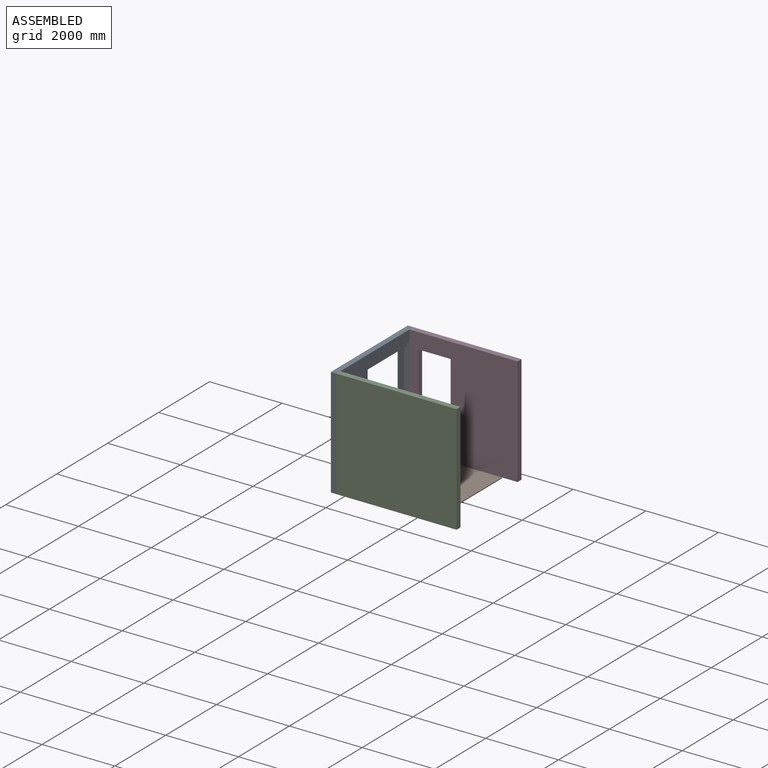
[diagram: assembled view]
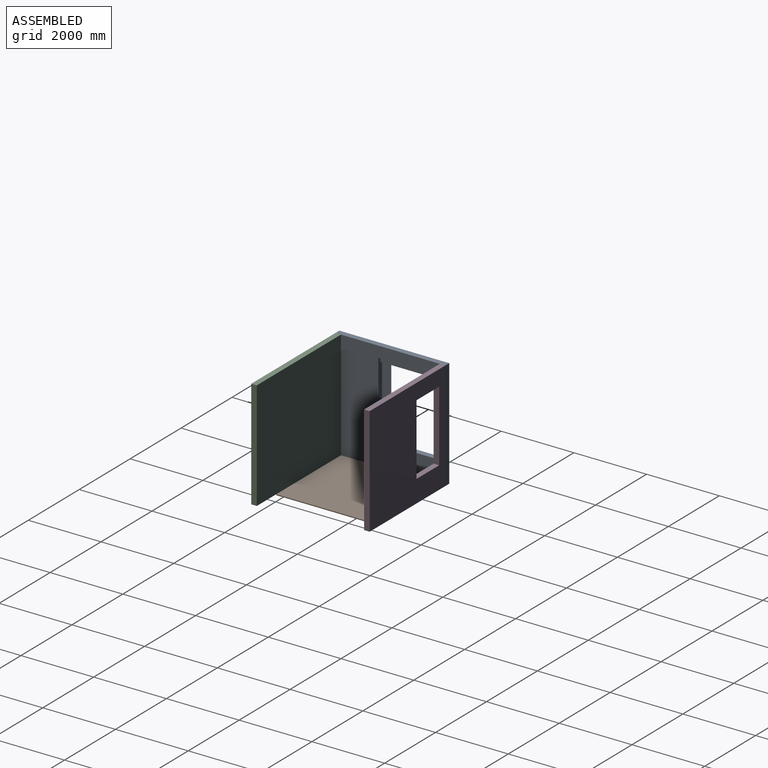
[diagram: assembled view, second angle]
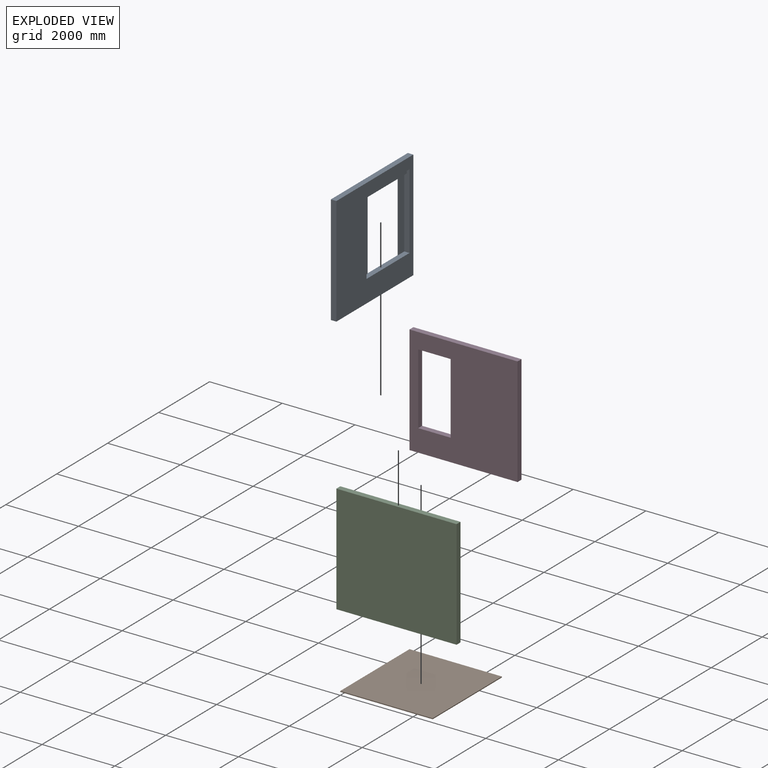
[diagram: exploded view]
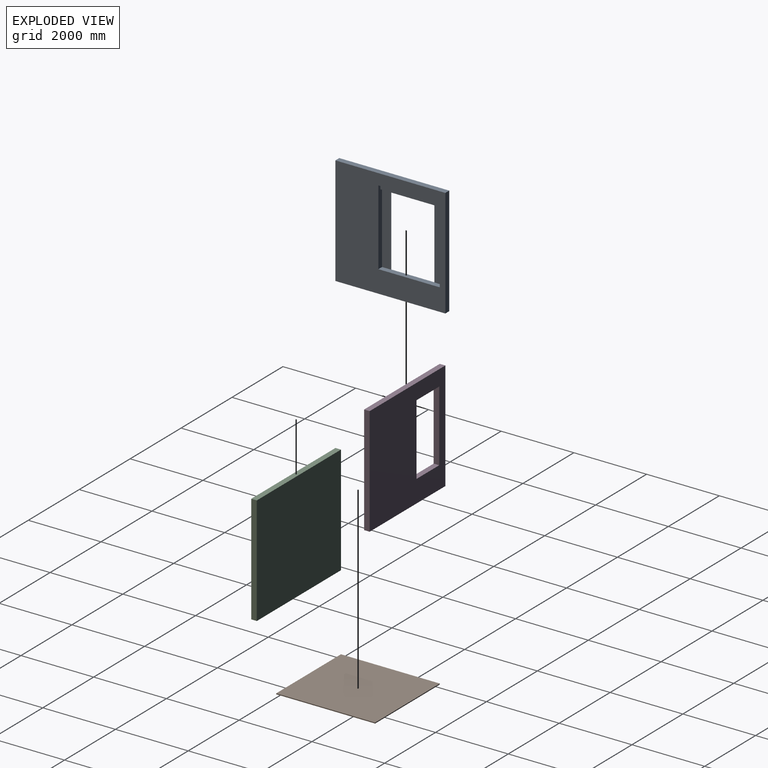
[diagram: exploded view, second angle]
ASSEMBLY  parts=4 mates=9
PART A: 16 faces, bbox 3022.6x152.4x2997.2 mm
  f0: plane 1689.1x76.2mm, normal (0,0,-1), area 123991.7mm2, adj f2,f8,f9,f10,f11,f12,f13,f15
  f1: plane 3022.6x2997.2mm, normal (0,-1,0), area 5541279.2mm2, adj f3,f4,f5,f6,f7,f10,f12,f14
  f2: plane 3022.6x2997.2mm, normal (0,1,0), area 6724502.7mm2, adj f0,f3,f4,f5,f6,f7,f8,f9
  f3: plane 2997.2x152.4mm, normal (-1,0,0), area 456773.3mm2, adj f1,f2,f4,f6
  f4: plane 3022.6x152.4mm, normal (0,0,-1), area 460644.2mm2, adj f1,f2,f3,f5
  f5: plane 2997.2x152.4mm, normal (1,0,0), area 456773.3mm2, adj f1,f2,f4,f6
  f6: plane 3022.6x152.4mm, normal (0,0,1), area 460644.2mm2, adj f1,f2,f3,f5
  f7: plane 1689.1x152.4mm, normal (0,0,1), area 252701.1mm2, adj f1,f2,f8,f9,f10,f11,f12,f13
  f8: plane 1955.8x9.53mm, normal (-1,0,0), area 18629mm2, adj f0,f2,f7,f11
  f9: plane 1955.8x9.53mm, normal (1,0,0), area 18629mm2, adj f0,f2,f7,f13
  f10: plane 2082.8x142.88mm, normal (-1,0,0), area 289112.3mm2, adj f0,f1,f7,f11,f14,f15
  f11: plane 1955.8x247.65mm, normal (0,-1,0), area 484353.9mm2, adj f0,f7,f8,f10
  f12: plane 2082.8x142.88mm, normal (1,0,0), area 289112.3mm2, adj f0,f1,f7,f13,f14,f15
  f13: plane 1955.8x247.65mm, normal (0,-1,0), area 484353.9mm2, adj f0,f7,f9,f12
  f14: plane 1689.1x76.2mm, normal (0,0,-1), area 128709.4mm2, adj f1,f10,f12,f15
  f15: plane 1689.1x127mm, normal (0,-1,0), area 214515.7mm2, adj f0,f10,f12,f14
PART B: 6 faces, bbox 2540x2717.8x25.4 mm
  f0: plane 2717.8x25.4mm, normal (1,0,0), area 69032.1mm2, adj f1,f3,f4,f5
  f1: plane 2540x25.4mm, normal (0,1,0), area 64516mm2, adj f0,f2,f4,f5
  f2: plane 2717.8x25.4mm, normal (-1,0,0), area 69032.1mm2, adj f1,f3,f4,f5
  f3: plane 2540x25.4mm, normal (0,-1,0), area 64516mm2, adj f0,f2,f4,f5
  f4: plane 2717.8x2540mm, normal (0,0,-1), area 6903212mm2, adj f0,f1,f2,f3
  f5: plane 2717.8x2540mm, normal (0,0,1), area 6903212mm2, adj f0,f1,f2,f3
PART C: 6 faces, bbox 3305.2x152.4x2997.2 mm
  f0: plane 2997.2x152.4mm, normal (-1,0,0), area 456773.3mm2, adj f1,f3,f4,f5
  f1: plane 3305.18x152.4mm, normal (0,0,-1), area 503708.7mm2, adj f0,f2,f4,f5
  f2: plane 2997.2x152.4mm, normal (1,0,0), area 456773.3mm2, adj f1,f3,f4,f5
  f3: plane 3305.18x152.4mm, normal (0,0,1), area 503708.7mm2, adj f0,f2,f4,f5
  f4: plane 3305.18x2997.2mm, normal (0,-1,0), area 9906270.5mm2, adj f0,f1,f2,f3
  f5: plane 3305.18x2997.2mm, normal (0,1,0), area 9906270.5mm2, adj f0,f1,f2,f3
PART D: 10 faces, bbox 2971.8x152.4x2997.2 mm
  f0: plane 2997.2x2971.8mm, normal (0,-1,0), area 7168372.8mm2, adj f2,f3,f4,f5,f6,f7,f8,f9
  f1: plane 2997.2x2971.8mm, normal (0,1,0), area 7168372.8mm2, adj f2,f3,f4,f5,f6,f7,f8,f9
  f2: plane 2997.2x152.4mm, normal (-1,0,0), area 456773.3mm2, adj f0,f1,f3,f5
  f3: plane 2971.8x152.4mm, normal (0,0,-1), area 452902.3mm2, adj f0,f1,f2,f4
  f4: plane 2997.2x152.4mm, normal (1,0,0), area 456773.3mm2, adj f0,f1,f3,f5
  f5: plane 2971.8x152.4mm, normal (0,0,1), area 452902.3mm2, adj f0,f1,f2,f4
  f6: plane 1955.8x152.4mm, normal (-1,0,0), area 298063.9mm2, adj f0,f1,f7,f9
  f7: plane 889x152.4mm, normal (0,0,-1), area 135483.6mm2, adj f0,f1,f6,f8
  f8: plane 1955.8x152.4mm, normal (1,0,0), area 298063.9mm2, adj f0,f1,f7,f9
  f9: plane 889x152.4mm, normal (0,0,1), area 135483.6mm2, adj f0,f1,f6,f8
PLACE A rot(axis=(0,0,1),90deg) t=(-152.4,-152.4,0)mm
PLACE B at identity fixed
PLACE C rot(axis=(1,0,0),0deg) t=(0,0,0)mm
PLACE D rot(axis=(0,1,0),0deg) t=(0,2870.2,0)mm
MATE planar A.f4 <-> C.f1  axis (0,0,-1) through (-76.2,1358.9,0)mm
MATE planar A.f4 <-> D.f3  axis (0,0,-1) through (-76.2,1358.9,0)mm
MATE planar D.f0 <-> B.f1  axis (0,-1,0) through (1485.9,2717.8,0)mm
MATE planar C.f0 <-> B.f2  axis (-1,0,0) through (0,-76.2,1498.6)mm
MATE planar B.f3 <-> C.f5  axis (0,-1,0) through (1270,0,-12.7)mm
MATE planar A.f1 <-> C.f0  axis (1,0,0) through (0,1032.35,1401.84)mm
MATE planar A.f1 <-> D.f2  axis (1,0,0) through (0,1032.35,1401.84)mm
MATE planar C.f4 <-> A.f3  axis (0,-1,0) through (1652.59,-152.4,1498.6)mm
MATE planar C.f1 <-> B.f5  axis (0,0,-1) through (1652.59,-76.2,0)mm
